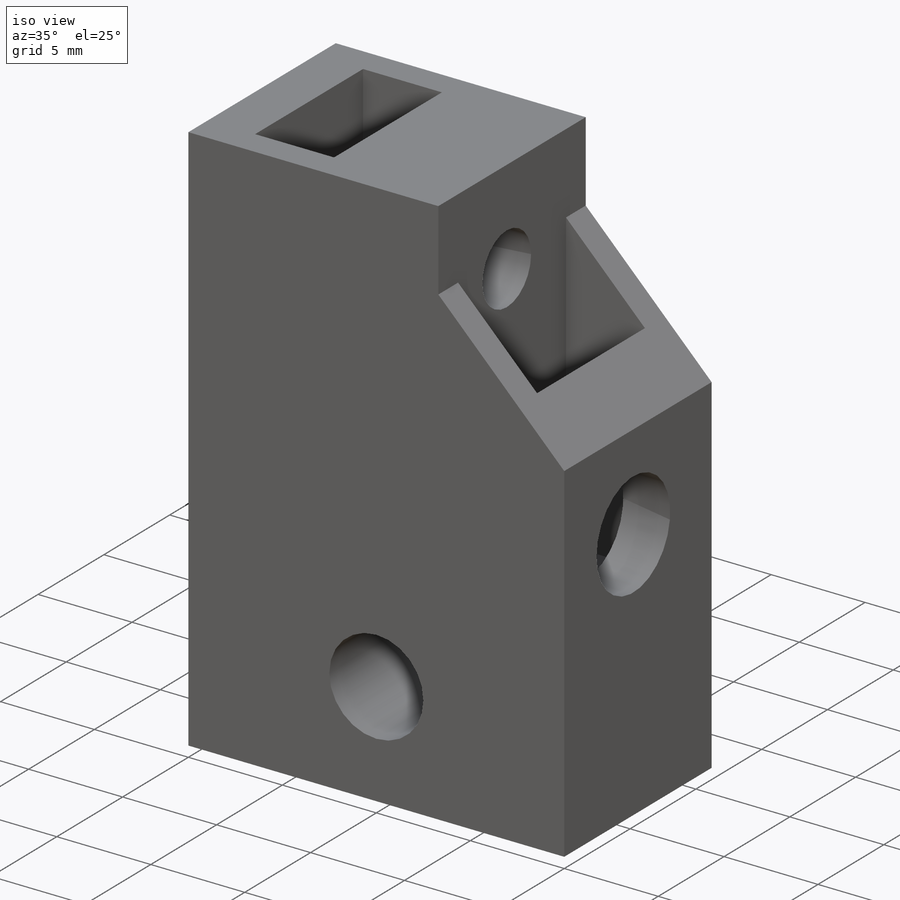
[diagram: iso view]
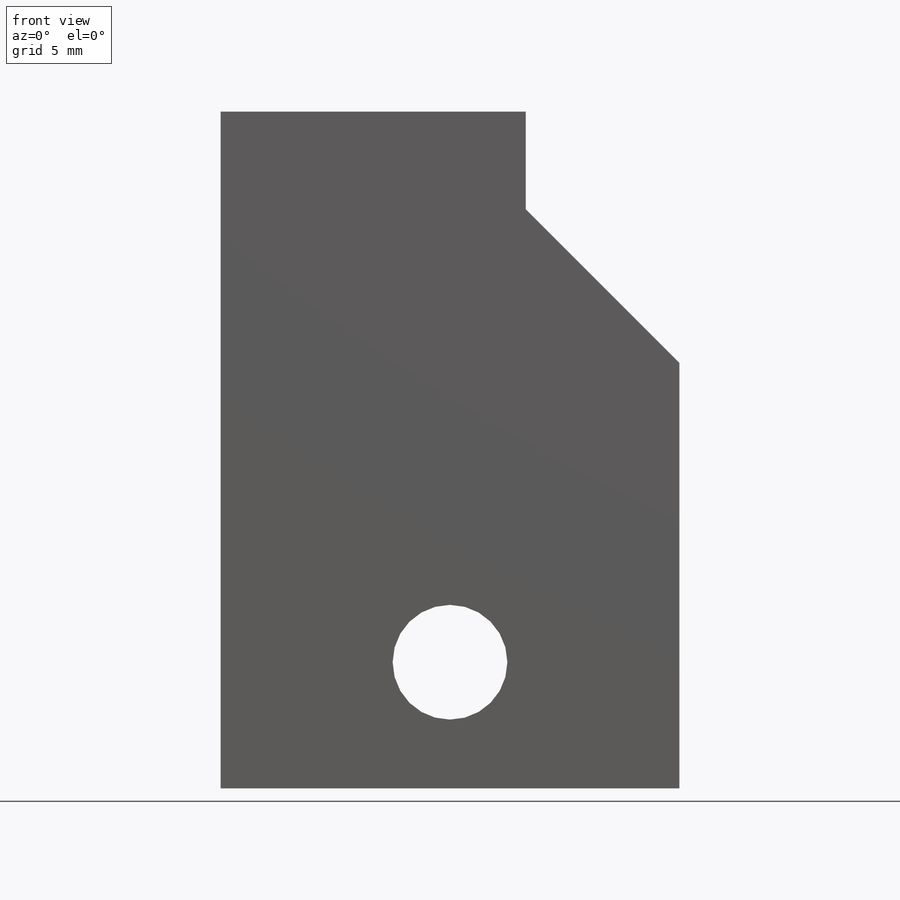
[diagram: front view]
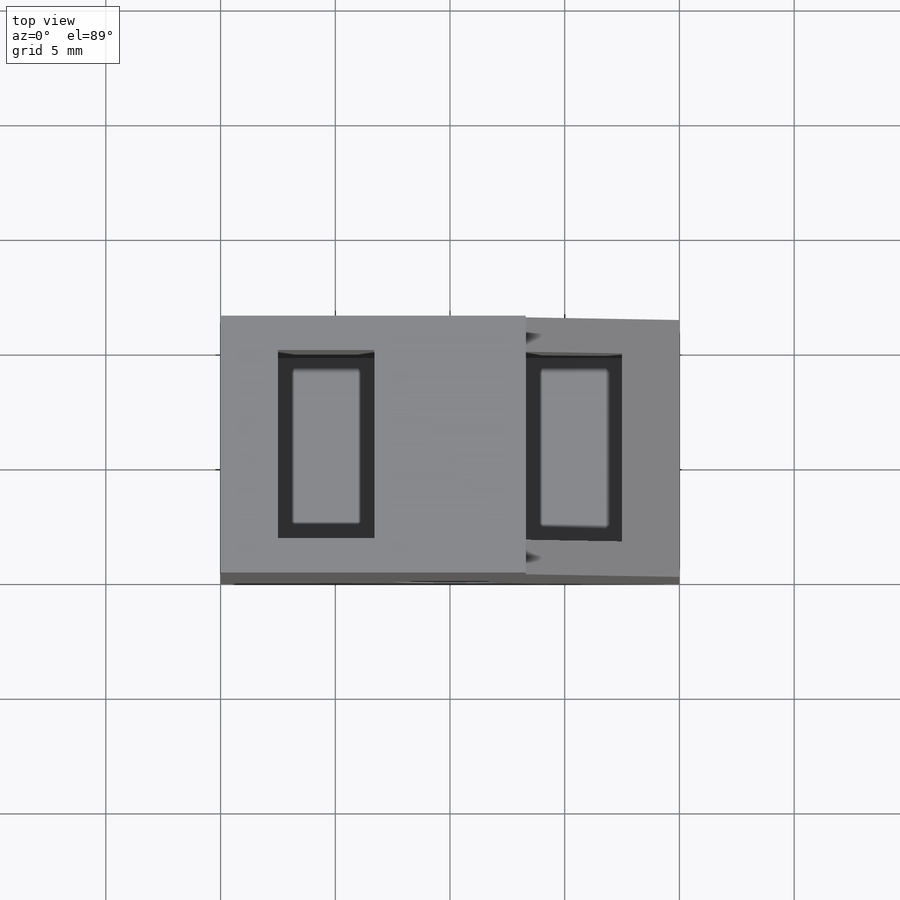
[diagram: top view]
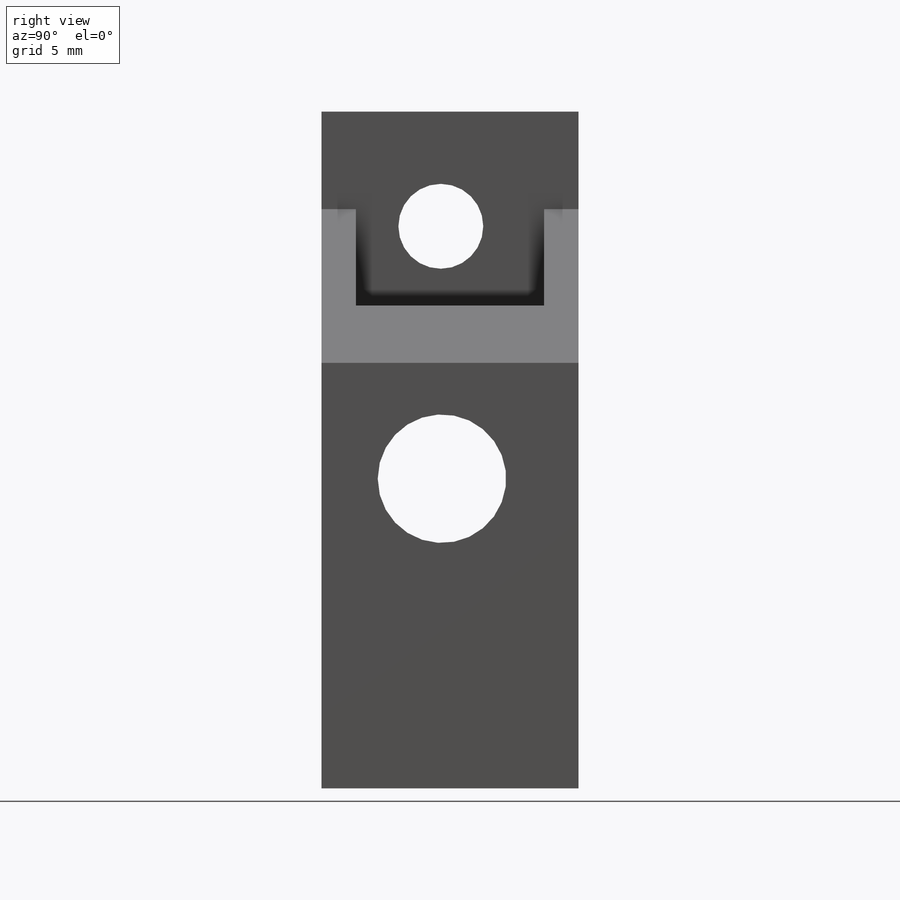
[diagram: right view]
SOLIDWORKS PART (.sldprt)
format: sldprt  version: not decoded by parser v0  size: 268,800 bytes
history: native  units: mm
features: sketch x6, cut_extrude x5, material x1, extrude x1, chamfer x1 (+12 scaffold rows collapsed)
feature tree (26):
  scaffold x12  (default folders/planes/origin — collapsed)
  material  "ABS PC"
  sketch  "Sketch6"  dims[c1.D1=~32.514312mm c1.D2=~78.387181mm c2.D1=20.0mm c2.D2=11.2mm]
  extrude  "Boss-Extrude2"  Depth=29.5mm
  sketch  "Sketch7"  dims[c1.D1=5.0mm c1.D2=5.0mm c1.D3=5.0mm c2.D2=5.5mm c2.D3=10.0mm]
  cut_extrude  "Cut-Extrude4"  [1 undecoded]
  sketch  "Sketch8"  dims[c1.D1=5.6mm c1.D3=5.6mm c1.D2=5.25mm c2.D3=13.5mm]
  cut_extrude  "Cut-Extrude5"  [1 undecoded]
  sketch  "Sketch9"  dims[c1.D1=~2.902168mm c1.D2=~8.059498mm c2.D1=~2.740418mm c2.D2=~7.422496mm c3.D1=4.2mm c3.D2=4.2mm c3.D3=2.5mm c3.D4=2.5mm c3.D5=8.2mm c4.D1=1.5mm c4.D6=20.0mm]
  cut_extrude  "Cut-Extrude6"  Depth=20mm
  sketch  "Sketch11"  dims[D1=3.7mm D2=11.0mm D3=6.0mm]
  cut_extrude  "Cut-Extrude8"  [1 undecoded]
  sketch  "Sketch12"  dims[c1.D1=~7.764965mm c1.D2=~11.162735mm c2.D1=5.0mm]
  cut_extrude  "Cut-Extrude9"  [1 undecoded]
  chamfer  "Chamfer1"  Distance=6.75mm Angle=45deg
decode coverage: 9 of 13 modeling features carry decoded parameters
note: ~ marks probable driven/reference dimensions
note: 4 parameter values undecoded
summary: no parameter record found for 4 features
note: suppression state not decoded; provenance and decode notes live in map.json
